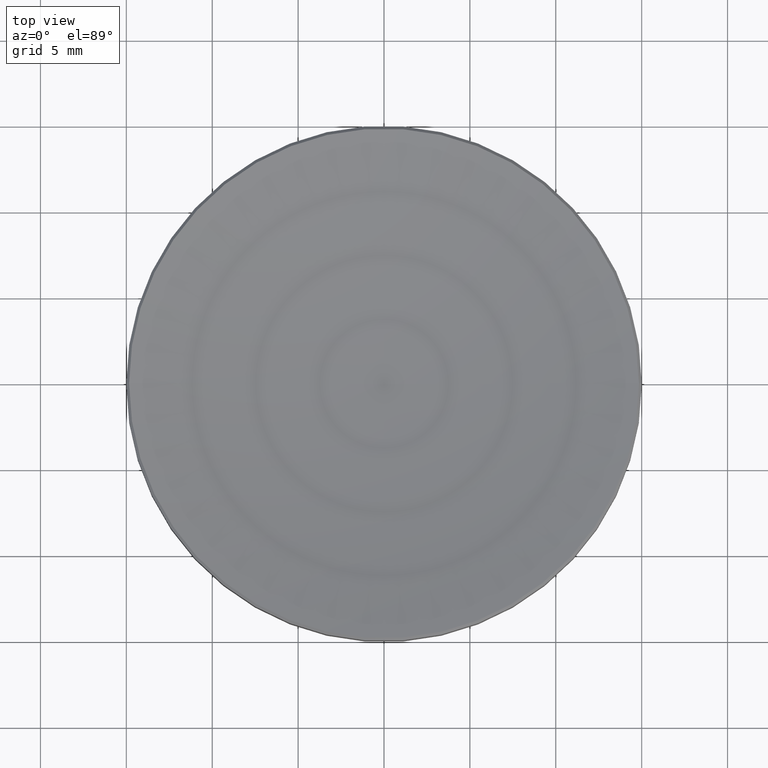
[diagram: clean part render]
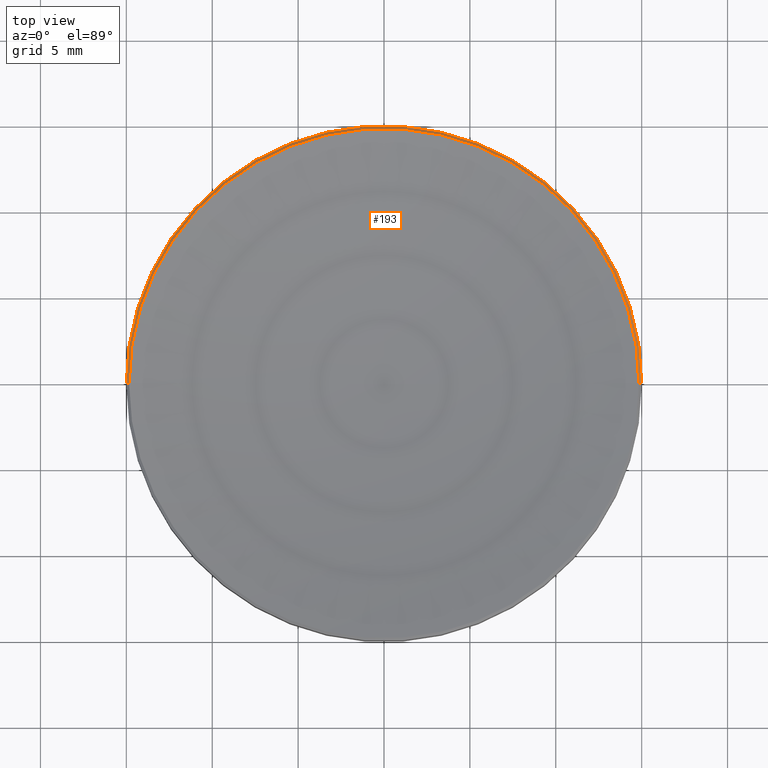
[diagram: same view with one face highlighted and labeled with its STEP entity id]
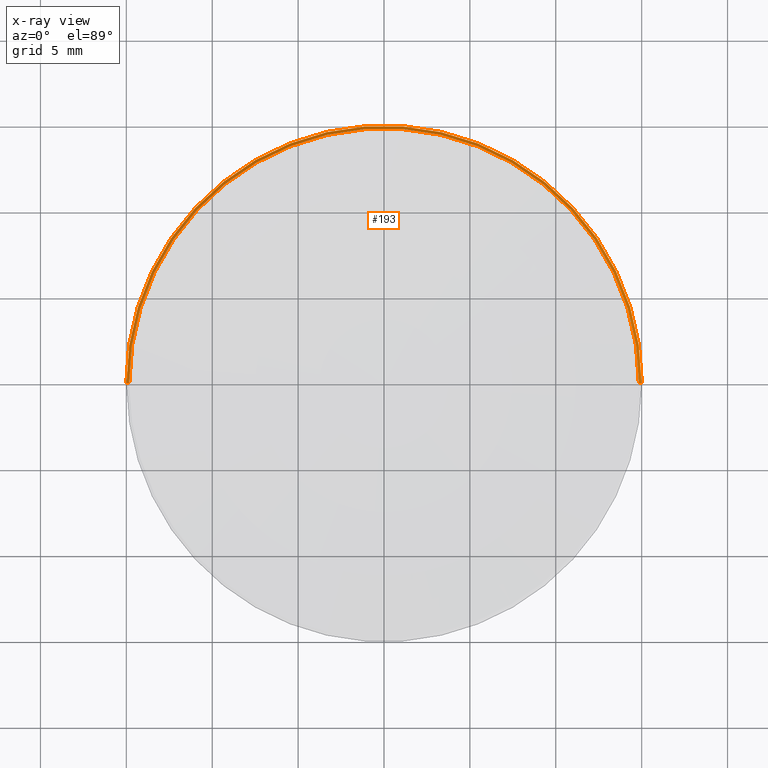
[diagram: x-ray of the same camera — body ghosted, the highlighted face saturated]
A machine part, top view. The second image highlights one B-rep face of the part: STEP entity #193.
The next image is the same camera in x-ray: the body ghosted, the highlighted face saturated — about 0% of this face is hidden behind the body in this view.
In plain terms, the highlighted conical surface has half-angle 45 deg.
Its self-contained STEP definition (entity closure, byte-faithful):
#6 = EDGE_CURVE ( 'NONE', #188, #123, #131, .T. ) ;
#7 = VECTOR ( 'NONE', #121, 1000.000000000000000 ) ;
#12 = DIRECTION ( 'NONE',  ( 0.000000000000000000, 0.000000000000000000, -1.000000000000000000 ) ) ;
#19 = CARTESIAN_POINT ( 'NONE',  ( 15.00000000000000000, 0.000000000000000000, 4.070000000000018048 ) ) ;
#24 = ORIENTED_EDGE ( 'NONE', *, *, #87, .F. ) ;
#38 = DIRECTION ( 'NONE',  ( -0.000000000000000000, -0.000000000000000000, 1.000000000000000000 ) ) ;
#48 = AXIS2_PLACEMENT_3D ( 'NONE', #215, #12, #159 ) ;
#57 = LINE ( 'NONE', #200, #180 ) ;
#59 = CARTESIAN_POINT ( 'NONE',  ( -14.83841890857158852, 1.817182222078975933E-15, 4.231581091428418873 ) ) ;
#66 = CONICAL_SURFACE ( 'NONE', #115, 14.83841890857159029, 0.7853981633974321808 ) ;
#80 = DIRECTION ( 'NONE',  ( 1.000000000000000000, 0.000000000000000000, 0.000000000000000000 ) ) ;
#87 = EDGE_CURVE ( 'NONE', #251, #163, #119, .T. ) ;
#88 = ORIENTED_EDGE ( 'NONE', *, *, #6, .F. ) ;
#111 = EDGE_CURVE ( 'NONE', #163, #188, #57, .T. ) ;
#115 = AXIS2_PLACEMENT_3D ( 'NONE', #171, #254, #143 ) ;
#116 = ORIENTED_EDGE ( 'NONE', *, *, #111, .F. ) ;
#117 = CARTESIAN_POINT ( 'NONE',  ( 14.83841890857158852, 0.000000000000000000, 4.231581091428418873 ) ) ;
#119 = CIRCLE ( 'NONE', #266, 14.83841890857160806 ) ;
#121 = DIRECTION ( 'NONE',  ( 0.7071067811865361374, 8.659560562354793575E-17, -0.7071067811865588970 ) ) ;
#123 = VERTEX_POINT ( 'NONE', #19 ) ;
#124 = LINE ( 'NONE', #216, #7 ) ;
#126 = CARTESIAN_POINT ( 'NONE',  ( -15.00000000000000000, 1.836970198721029589E-15, 4.070000000000018048 ) ) ;
#129 = CARTESIAN_POINT ( 'NONE',  ( 0.000000000000000000, 0.000000000000000000, 4.231581091428418873 ) ) ;
#131 = CIRCLE ( 'NONE', #48, 15.00000000000000000 ) ;
#136 = EDGE_LOOP ( 'NONE', ( #24, #229, #88, #116 ) ) ;
#143 = DIRECTION ( 'NONE',  ( -1.000000000000000000, 0.000000000000000000, 0.000000000000000000 ) ) ;
#159 = DIRECTION ( 'NONE',  ( -1.000000000000000000, 0.000000000000000000, 0.000000000000000000 ) ) ;
#163 = VERTEX_POINT ( 'NONE', #59 ) ;
#171 = CARTESIAN_POINT ( 'NONE',  ( 0.000000000000000000, 0.000000000000000000, 4.231581091428432195 ) ) ;
#180 = VECTOR ( 'NONE', #217, 1000.000000000000000 ) ;
#188 = VERTEX_POINT ( 'NONE', #126 ) ;
#192 = FACE_OUTER_BOUND ( 'NONE', #136, .T. ) ;
#193 = ADVANCED_FACE ( 'NONE', ( #192 ), #66, .T. ) ;
#200 = CARTESIAN_POINT ( 'NONE',  ( -14.83841890857159029, 0.000000000000000000, 4.231581091428432195 ) ) ;
#202 = EDGE_CURVE ( 'NONE', #251, #123, #124, .T. ) ;
#215 = CARTESIAN_POINT ( 'NONE',  ( 0.000000000000000000, 0.000000000000000000, 4.070000000000018048 ) ) ;
#216 = CARTESIAN_POINT ( 'NONE',  ( 14.83841890857159029, 1.817182222078975933E-15, 4.231581091428432195 ) ) ;
#217 = DIRECTION ( 'NONE',  ( -0.7071067811865361374, 0.000000000000000000, -0.7071067811865588970 ) ) ;
#229 = ORIENTED_EDGE ( 'NONE', *, *, #202, .T. ) ;
#251 = VERTEX_POINT ( 'NONE', #117 ) ;
#254 = DIRECTION ( 'NONE',  ( 0.000000000000000000, 0.000000000000000000, -1.000000000000000000 ) ) ;
#266 = AXIS2_PLACEMENT_3D ( 'NONE', #129, #38, #80 ) ;